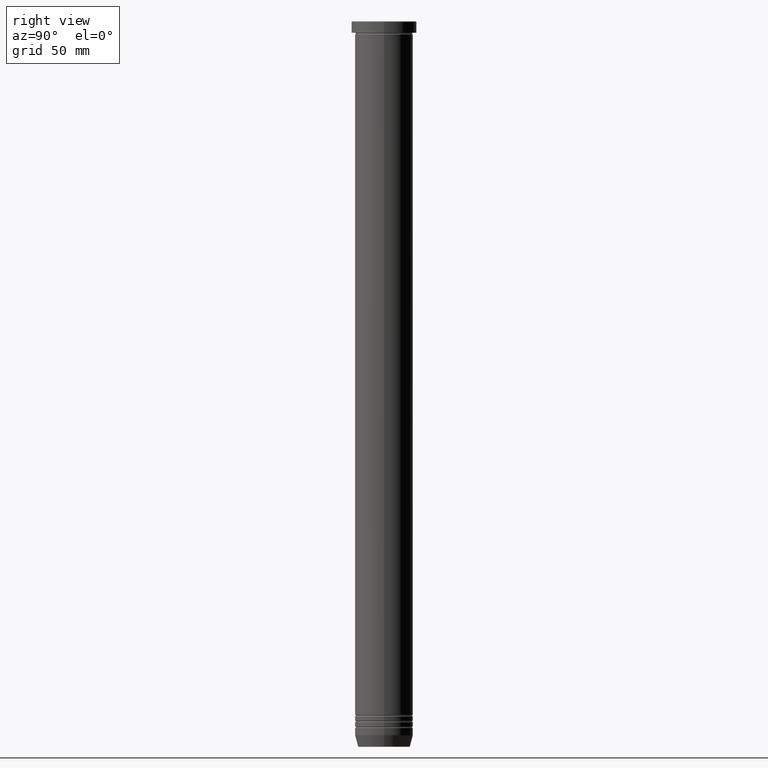
[diagram: clean part render]
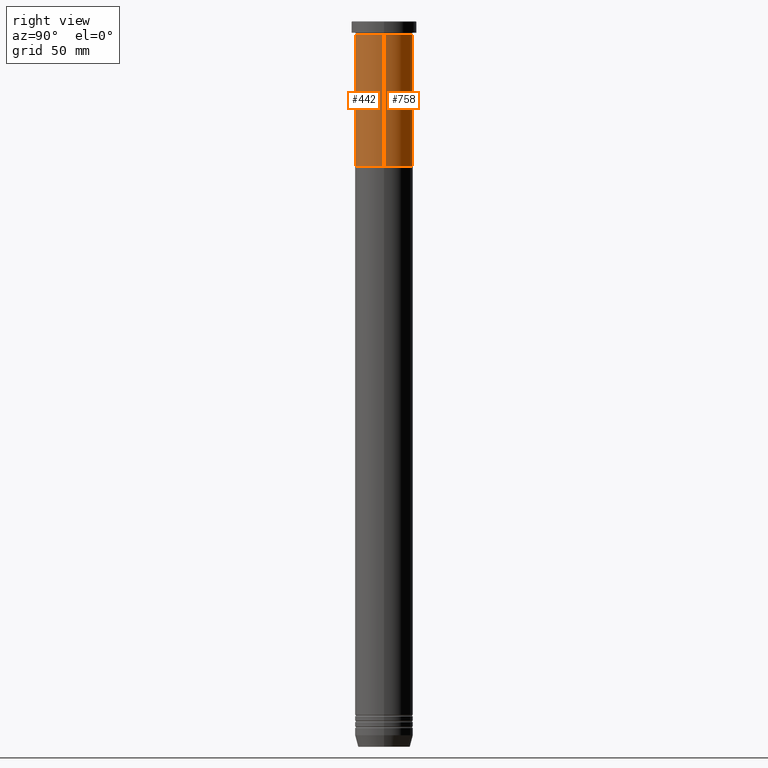
[diagram: same view with one multi-face feature highlighted, each face labeled with its STEP entity id]
A machine part, right view. The highlighted faces form ONE feature: a constant-radius fillet chain: 2 tangent blend faces with common blend radius 20 mm. The faces share edges in the B-rep.
Their STEP definitions:
[1] entity #442 (Cylinder):
#32 = CARTESIAN_POINT ( 'NONE',  ( 0.000000000000000000, 0.000000000000000000, 0.000000000000000000 ) ) ;
#39 = LINE ( 'NONE', #224, #672 ) ;
#64 = EDGE_CURVE ( 'NONE', #166, #904, #157, .T. ) ;
#81 = VERTEX_POINT ( 'NONE', #550 ) ;
#92 = AXIS2_PLACEMENT_3D ( 'NONE', #543, #538, #1003 ) ;
#112 = CIRCLE ( 'NONE', #92, 20.00000000000000000 ) ;
#137 = DIRECTION ( 'NONE',  ( 1.000000000000000000, 0.000000000000000000, 0.000000000000000000 ) ) ;
#140 = CIRCLE ( 'NONE', #952, 20.00000000000000000 ) ;
#157 = LINE ( 'NONE', #471, #575 ) ;
#166 = VERTEX_POINT ( 'NONE', #798 ) ;
#224 = CARTESIAN_POINT ( 'NONE',  ( -20.00000000000000000, 2.449293598294706513E-15, 0.000000000000000000 ) ) ;
#288 = CARTESIAN_POINT ( 'NONE',  ( 0.000000000000000000, 0.000000000000000000, -100.0000000000000000 ) ) ;
#311 = AXIS2_PLACEMENT_3D ( 'NONE', #32, #784, #929 ) ;
#366 = VERTEX_POINT ( 'NONE', #522 ) ;
#417 = EDGE_CURVE ( 'NONE', #366, #166, #140, .T. ) ;
#442 = ADVANCED_FACE ( 'NONE', ( #712 ), #692, .T. ) ;
#471 = CARTESIAN_POINT ( 'NONE',  ( 20.00000000000000000, 0.000000000000000000, 0.000000000000000000 ) ) ;
#495 = EDGE_CURVE ( 'NONE', #366, #81, #39, .T. ) ;
#522 = CARTESIAN_POINT ( 'NONE',  ( -20.00000000000000000, 2.449293598294706513E-15, -100.0000000000000000 ) ) ;
#538 = DIRECTION ( 'NONE',  ( -0.000000000000000000, -0.000000000000000000, 1.000000000000000000 ) ) ;
#543 = CARTESIAN_POINT ( 'NONE',  ( 0.000000000000000000, 0.000000000000000000, -9.000000000000001776 ) ) ;
#550 = CARTESIAN_POINT ( 'NONE',  ( -20.00000000000000000, 2.449293598294706513E-15, -9.000000000000001776 ) ) ;
#573 = ORIENTED_EDGE ( 'NONE', *, *, #495, .F. ) ;
#575 = VECTOR ( 'NONE', #709, 1000.000000000000000 ) ;
#596 = EDGE_LOOP ( 'NONE', ( #573, #946, #816, #935 ) ) ;
#672 = VECTOR ( 'NONE', #941, 1000.000000000000000 ) ;
#692 = CYLINDRICAL_SURFACE ( 'NONE', #311, 20.00000000000000000 ) ;
#709 = DIRECTION ( 'NONE',  ( -0.000000000000000000, -0.000000000000000000, 1.000000000000000000 ) ) ;
#712 = FACE_OUTER_BOUND ( 'NONE', #596, .T. ) ;
#780 = DIRECTION ( 'NONE',  ( -0.000000000000000000, -0.000000000000000000, 1.000000000000000000 ) ) ;
#784 = DIRECTION ( 'NONE',  ( -0.000000000000000000, -0.000000000000000000, 1.000000000000000000 ) ) ;
#798 = CARTESIAN_POINT ( 'NONE',  ( 20.00000000000000000, 0.000000000000000000, -100.0000000000000000 ) ) ;
#816 = ORIENTED_EDGE ( 'NONE', *, *, #64, .T. ) ;
#904 = VERTEX_POINT ( 'NONE', #921 ) ;
#921 = CARTESIAN_POINT ( 'NONE',  ( 20.00000000000000000, 0.000000000000000000, -9.000000000000001776 ) ) ;
#929 = DIRECTION ( 'NONE',  ( 1.000000000000000000, 0.000000000000000000, 0.000000000000000000 ) ) ;
#935 = ORIENTED_EDGE ( 'NONE', *, *, #979, .F. ) ;
#941 = DIRECTION ( 'NONE',  ( -0.000000000000000000, -0.000000000000000000, 1.000000000000000000 ) ) ;
#946 = ORIENTED_EDGE ( 'NONE', *, *, #417, .T. ) ;
#952 = AXIS2_PLACEMENT_3D ( 'NONE', #288, #780, #137 ) ;
#979 = EDGE_CURVE ( 'NONE', #81, #904, #112, .T. ) ;
#1003 = DIRECTION ( 'NONE',  ( 1.000000000000000000, 0.000000000000000000, 0.000000000000000000 ) ) ;
[2] entity #758 (Cylinder):
#18 = AXIS2_PLACEMENT_3D ( 'NONE', #846, #356, #181 ) ;
#39 = LINE ( 'NONE', #224, #672 ) ;
#64 = EDGE_CURVE ( 'NONE', #166, #904, #157, .T. ) ;
#79 = DIRECTION ( 'NONE',  ( -0.000000000000000000, -0.000000000000000000, 1.000000000000000000 ) ) ;
#81 = VERTEX_POINT ( 'NONE', #550 ) ;
#104 = DIRECTION ( 'NONE',  ( 1.000000000000000000, 0.000000000000000000, 0.000000000000000000 ) ) ;
#157 = LINE ( 'NONE', #471, #575 ) ;
#166 = VERTEX_POINT ( 'NONE', #798 ) ;
#181 = DIRECTION ( 'NONE',  ( 1.000000000000000000, 0.000000000000000000, 0.000000000000000000 ) ) ;
#199 = DIRECTION ( 'NONE',  ( -0.000000000000000000, -0.000000000000000000, 1.000000000000000000 ) ) ;
#224 = CARTESIAN_POINT ( 'NONE',  ( -20.00000000000000000, 2.449293598294706513E-15, 0.000000000000000000 ) ) ;
#227 = EDGE_CURVE ( 'NONE', #166, #366, #262, .T. ) ;
#262 = CIRCLE ( 'NONE', #519, 20.00000000000000000 ) ;
#267 = EDGE_CURVE ( 'NONE', #904, #81, #759, .T. ) ;
#310 = CYLINDRICAL_SURFACE ( 'NONE', #379, 20.00000000000000000 ) ;
#328 = CARTESIAN_POINT ( 'NONE',  ( 0.000000000000000000, 0.000000000000000000, 0.000000000000000000 ) ) ;
#356 = DIRECTION ( 'NONE',  ( -0.000000000000000000, -0.000000000000000000, 1.000000000000000000 ) ) ;
#366 = VERTEX_POINT ( 'NONE', #522 ) ;
#379 = AXIS2_PLACEMENT_3D ( 'NONE', #328, #79, #807 ) ;
#471 = CARTESIAN_POINT ( 'NONE',  ( 20.00000000000000000, 0.000000000000000000, 0.000000000000000000 ) ) ;
#495 = EDGE_CURVE ( 'NONE', #366, #81, #39, .T. ) ;
#517 = EDGE_LOOP ( 'NONE', ( #654, #528, #853, #680 ) ) ;
#519 = AXIS2_PLACEMENT_3D ( 'NONE', #665, #199, #104 ) ;
#522 = CARTESIAN_POINT ( 'NONE',  ( -20.00000000000000000, 2.449293598294706513E-15, -100.0000000000000000 ) ) ;
#528 = ORIENTED_EDGE ( 'NONE', *, *, #495, .T. ) ;
#550 = CARTESIAN_POINT ( 'NONE',  ( -20.00000000000000000, 2.449293598294706513E-15, -9.000000000000001776 ) ) ;
#575 = VECTOR ( 'NONE', #709, 1000.000000000000000 ) ;
#654 = ORIENTED_EDGE ( 'NONE', *, *, #227, .T. ) ;
#665 = CARTESIAN_POINT ( 'NONE',  ( 0.000000000000000000, 0.000000000000000000, -100.0000000000000000 ) ) ;
#672 = VECTOR ( 'NONE', #941, 1000.000000000000000 ) ;
#680 = ORIENTED_EDGE ( 'NONE', *, *, #64, .F. ) ;
#709 = DIRECTION ( 'NONE',  ( -0.000000000000000000, -0.000000000000000000, 1.000000000000000000 ) ) ;
#739 = FACE_OUTER_BOUND ( 'NONE', #517, .T. ) ;
#758 = ADVANCED_FACE ( 'NONE', ( #739 ), #310, .T. ) ;
#759 = CIRCLE ( 'NONE', #18, 20.00000000000000000 ) ;
#798 = CARTESIAN_POINT ( 'NONE',  ( 20.00000000000000000, 0.000000000000000000, -100.0000000000000000 ) ) ;
#807 = DIRECTION ( 'NONE',  ( 1.000000000000000000, 0.000000000000000000, 0.000000000000000000 ) ) ;
#846 = CARTESIAN_POINT ( 'NONE',  ( 0.000000000000000000, 0.000000000000000000, -9.000000000000001776 ) ) ;
#853 = ORIENTED_EDGE ( 'NONE', *, *, #267, .F. ) ;
#904 = VERTEX_POINT ( 'NONE', #921 ) ;
#921 = CARTESIAN_POINT ( 'NONE',  ( 20.00000000000000000, 0.000000000000000000, -9.000000000000001776 ) ) ;
#941 = DIRECTION ( 'NONE',  ( -0.000000000000000000, -0.000000000000000000, 1.000000000000000000 ) ) ;